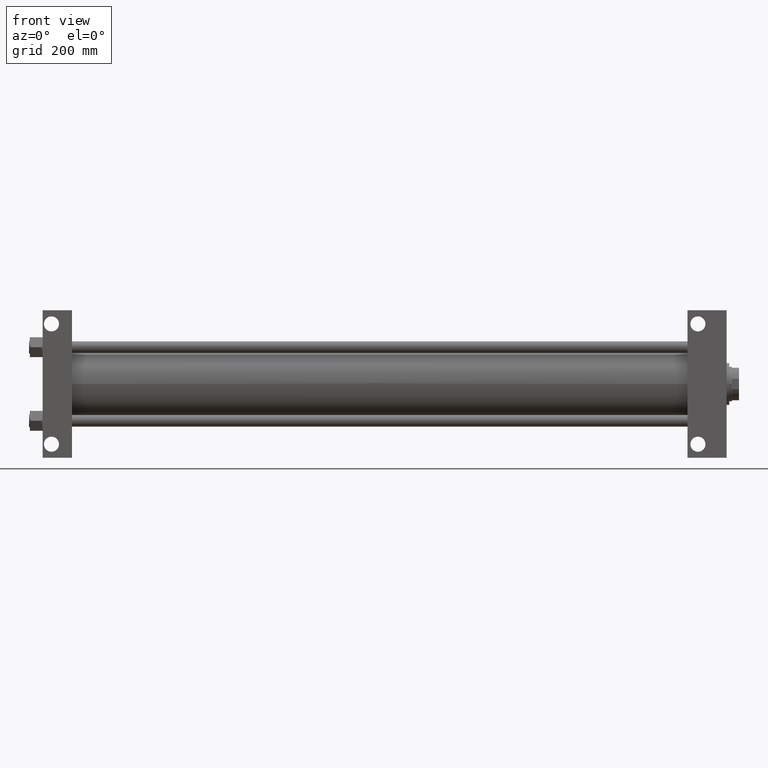
[diagram: clean part render]
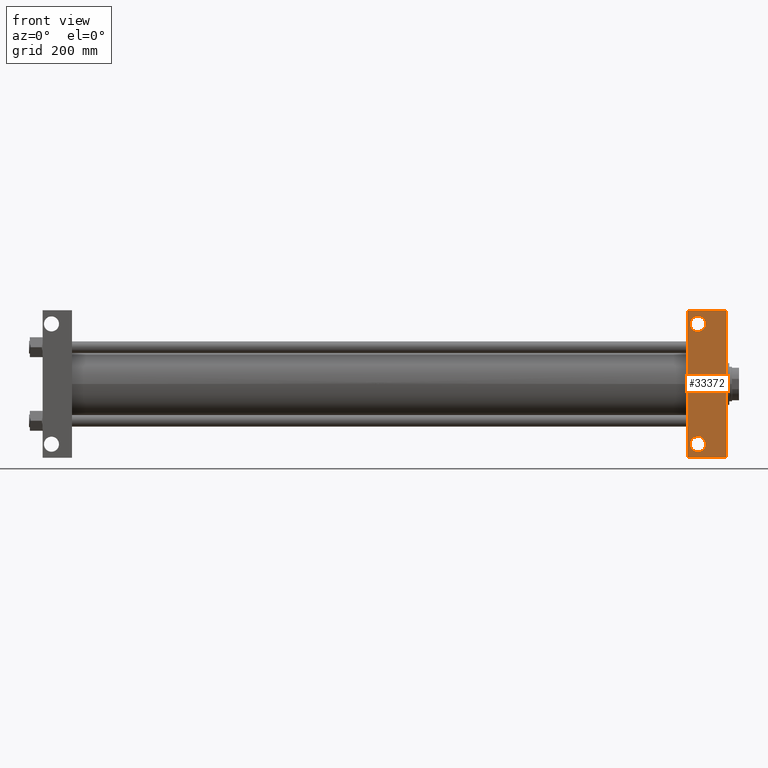
[diagram: same view with one face highlighted and labeled with its STEP entity id]
A machine part, front view. The second image highlights one B-rep face of the part: STEP entity #33372.
In plain terms, the highlighted planar face has unit normal (0, -1, 0).
Its self-contained STEP definition (entity closure, byte-faithful):
#122 = CIRCLE ( 'NONE', #11022, 19.99949999999927996 ) ;
#133 = VERTEX_POINT ( 'NONE', #29171 ) ;
#1054 = EDGE_LOOP ( 'NONE', ( #4686, #37214 ) ) ;
#2330 = CARTESIAN_POINT ( 'NONE',  ( 1768.000000000000000, 122.5000000000000284, -122.5000000000000142 ) ) ;
#4115 = CARTESIAN_POINT ( 'NONE',  ( 1694.000000000000000, -155.5000000000000000, -122.5000000000000142 ) ) ;
#4481 = CARTESIAN_POINT ( 'NONE',  ( 1768.000000000000000, 190.4999999999997726, -122.5000000000000142 ) ) ;
#4686 = ORIENTED_EDGE ( 'NONE', *, *, #30545, .T. ) ;
#5418 = LINE ( 'NONE', #26889, #11393 ) ;
#5472 = EDGE_CURVE ( 'NONE', #47798, #16829, #37425, .T. ) ;
#6380 = AXIS2_PLACEMENT_3D ( 'NONE', #32429, #35824, #28776 ) ;
#6452 = EDGE_CURVE ( 'NONE', #133, #25909, #28197, .T. ) ;
#8663 = EDGE_CURVE ( 'NONE', #16829, #27138, #36590, .T. ) ;
#8767 = VECTOR ( 'NONE', #18112, 1000.000000000000000 ) ;
#9401 = DIRECTION ( 'NONE',  ( -1.000000000000000000, 0.000000000000000000, -0.000000000000000000 ) ) ;
#11022 = AXIS2_PLACEMENT_3D ( 'NONE', #4115, #34066, #15334 ) ;
#11072 = EDGE_LOOP ( 'NONE', ( #13242, #13480 ) ) ;
#11393 = VECTOR ( 'NONE', #16889, 1000.000000000000000 ) ;
#12571 = VECTOR ( 'NONE', #25773, 1000.000000000000000 ) ;
#12839 = ORIENTED_EDGE ( 'NONE', *, *, #8663, .T. ) ;
#13242 = ORIENTED_EDGE ( 'NONE', *, *, #13712, .T. ) ;
#13480 = ORIENTED_EDGE ( 'NONE', *, *, #25141, .T. ) ;
#13520 = CARTESIAN_POINT ( 'NONE',  ( 1674.000500000000557, -155.5000000000000000, -122.5000000000000142 ) ) ;
#13712 = EDGE_CURVE ( 'NONE', #18527, #20126, #39909, .T. ) ;
#15334 = DIRECTION ( 'NONE',  ( -1.000000000000000000, 0.000000000000000000, 0.000000000000000000 ) ) ;
#16204 = VECTOR ( 'NONE', #44965, 1000.000000000000000 ) ;
#16730 = FACE_BOUND ( 'NONE', #11072, .T. ) ;
#16829 = VERTEX_POINT ( 'NONE', #38464 ) ;
#16889 = DIRECTION ( 'NONE',  ( 1.000000000000000000, -2.748076793626625569E-16, 0.000000000000000000 ) ) ;
#18112 = DIRECTION ( 'NONE',  ( -1.000000000000000000, -2.748076793626625569E-16, -0.000000000000000000 ) ) ;
#18398 = ORIENTED_EDGE ( 'NONE', *, *, #43698, .T. ) ;
#18527 = VERTEX_POINT ( 'NONE', #13520 ) ;
#19731 = FACE_BOUND ( 'NONE', #1054, .T. ) ;
#20126 = VERTEX_POINT ( 'NONE', #32157 ) ;
#20330 = CARTESIAN_POINT ( 'NONE',  ( 1667.000000000000000, -190.5000000000001990, -122.5000000000000142 ) ) ;
#20888 = CARTESIAN_POINT ( 'NONE',  ( 1694.000000000000000, 155.5000000000000000, -122.5000000000000142 ) ) ;
#22235 = ORIENTED_EDGE ( 'NONE', *, *, #46401, .F. ) ;
#23149 = FACE_OUTER_BOUND ( 'NONE', #41594, .T. ) ;
#23224 = CARTESIAN_POINT ( 'NONE',  ( 1694.000000000000000, -155.5000000000000000, -122.5000000000000142 ) ) ;
#23553 = CIRCLE ( 'NONE', #31290, 19.99949999999927996 ) ;
#25141 = EDGE_CURVE ( 'NONE', #20126, #18527, #122, .T. ) ;
#25773 = DIRECTION ( 'NONE',  ( 0.000000000000000000, -1.000000000000000000, 0.000000000000000000 ) ) ;
#25909 = VERTEX_POINT ( 'NONE', #41188 ) ;
#26014 = CARTESIAN_POINT ( 'NONE',  ( 1768.000000000000000, 122.5000000000000284, -122.5000000000000142 ) ) ;
#26889 = CARTESIAN_POINT ( 'NONE',  ( 1667.000000000000000, 190.4999999999998010, -122.5000000000000142 ) ) ;
#27138 = VERTEX_POINT ( 'NONE', #20330 ) ;
#27927 = PLANE ( 'NONE',  #28277 ) ;
#28174 = DIRECTION ( 'NONE',  ( 0.000000000000000000, 0.000000000000000000, -1.000000000000000000 ) ) ;
#28197 = CIRCLE ( 'NONE', #6380, 19.99949999999927996 ) ;
#28277 = AXIS2_PLACEMENT_3D ( 'NONE', #2330, #28174, #9401 ) ;
#28776 = DIRECTION ( 'NONE',  ( -1.000000000000000000, 0.000000000000000000, 0.000000000000000000 ) ) ;
#29171 = CARTESIAN_POINT ( 'NONE',  ( 1713.999499999999216, 155.5000000000000000, -122.5000000000000142 ) ) ;
#30545 = EDGE_CURVE ( 'NONE', #25909, #133, #23553, .T. ) ;
#31290 = AXIS2_PLACEMENT_3D ( 'NONE', #20888, #38655, #35718 ) ;
#31907 = CARTESIAN_POINT ( 'NONE',  ( 1667.000000000000000, 190.4999999999998010, -122.5000000000000142 ) ) ;
#32144 = AXIS2_PLACEMENT_3D ( 'NONE', #23224, #33442, #38050 ) ;
#32157 = CARTESIAN_POINT ( 'NONE',  ( 1713.999499999999216, -155.5000000000000000, -122.5000000000000142 ) ) ;
#32429 = CARTESIAN_POINT ( 'NONE',  ( 1694.000000000000000, 155.5000000000000000, -122.5000000000000142 ) ) ;
#32443 = ORIENTED_EDGE ( 'NONE', *, *, #5472, .T. ) ;
#33372 = ADVANCED_FACE ( 'NONE', ( #19731, #16730, #23149 ), #27927, .T. ) ;
#33442 = DIRECTION ( 'NONE',  ( -0.000000000000000000, -0.000000000000000000, 1.000000000000000000 ) ) ;
#34012 = CARTESIAN_POINT ( 'NONE',  ( 1667.000000000000000, 122.5000000000000284, -122.5000000000000142 ) ) ;
#34066 = DIRECTION ( 'NONE',  ( -0.000000000000000000, -0.000000000000000000, 1.000000000000000000 ) ) ;
#35718 = DIRECTION ( 'NONE',  ( -1.000000000000000000, 0.000000000000000000, 0.000000000000000000 ) ) ;
#35824 = DIRECTION ( 'NONE',  ( -0.000000000000000000, -0.000000000000000000, 1.000000000000000000 ) ) ;
#36590 = LINE ( 'NONE', #40724, #8767 ) ;
#36721 = VERTEX_POINT ( 'NONE', #31907 ) ;
#37214 = ORIENTED_EDGE ( 'NONE', *, *, #6452, .T. ) ;
#37425 = LINE ( 'NONE', #26014, #12571 ) ;
#38050 = DIRECTION ( 'NONE',  ( -1.000000000000000000, 0.000000000000000000, 0.000000000000000000 ) ) ;
#38464 = CARTESIAN_POINT ( 'NONE',  ( 1768.000000000000000, -190.5000000000001705, -122.5000000000000142 ) ) ;
#38655 = DIRECTION ( 'NONE',  ( -0.000000000000000000, -0.000000000000000000, 1.000000000000000000 ) ) ;
#39909 = CIRCLE ( 'NONE', #32144, 19.99949999999927996 ) ;
#40724 = CARTESIAN_POINT ( 'NONE',  ( 1667.000000000000000, -190.5000000000001990, -122.5000000000000142 ) ) ;
#40837 = LINE ( 'NONE', #34012, #16204 ) ;
#41188 = CARTESIAN_POINT ( 'NONE',  ( 1674.000500000000557, 155.5000000000000000, -122.5000000000000142 ) ) ;
#41594 = EDGE_LOOP ( 'NONE', ( #22235, #18398, #32443, #12839 ) ) ;
#43698 = EDGE_CURVE ( 'NONE', #36721, #47798, #5418, .T. ) ;
#44965 = DIRECTION ( 'NONE',  ( 0.000000000000000000, -1.000000000000000000, 0.000000000000000000 ) ) ;
#46401 = EDGE_CURVE ( 'NONE', #36721, #27138, #40837, .T. ) ;
#47798 = VERTEX_POINT ( 'NONE', #4481 ) ;